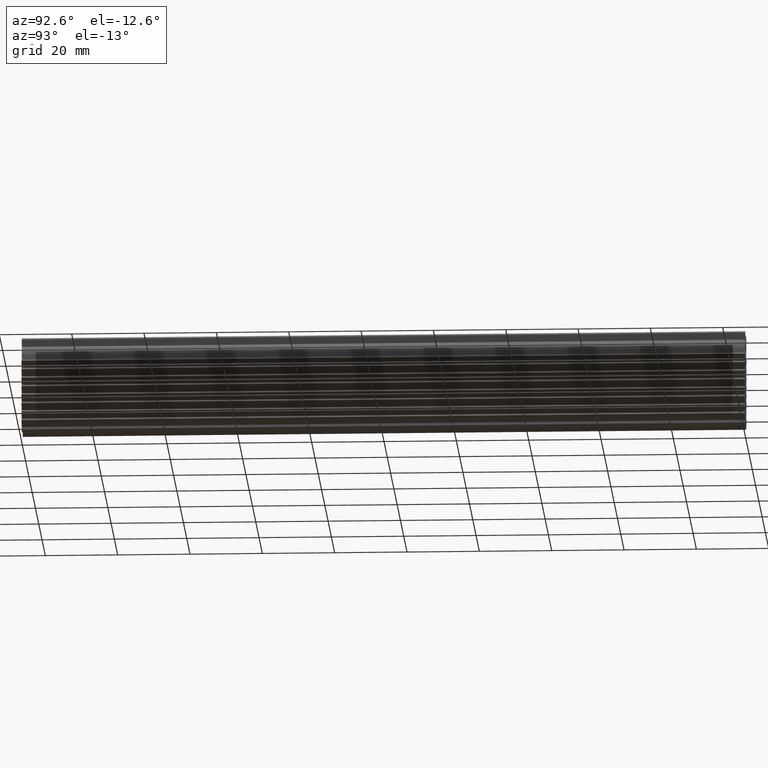
[diagram: clean part render]
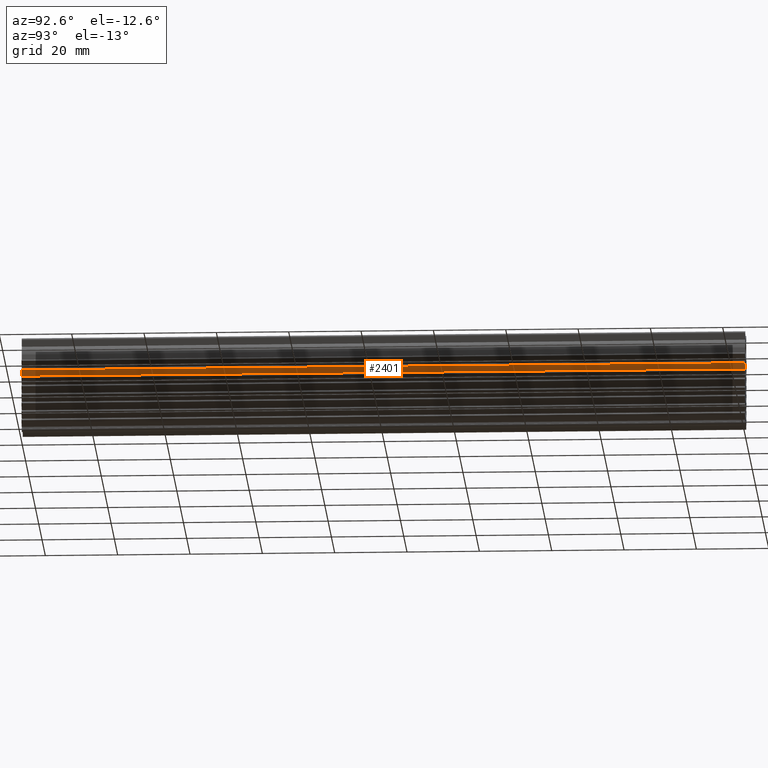
[diagram: same view with one face highlighted and labeled with its STEP entity id]
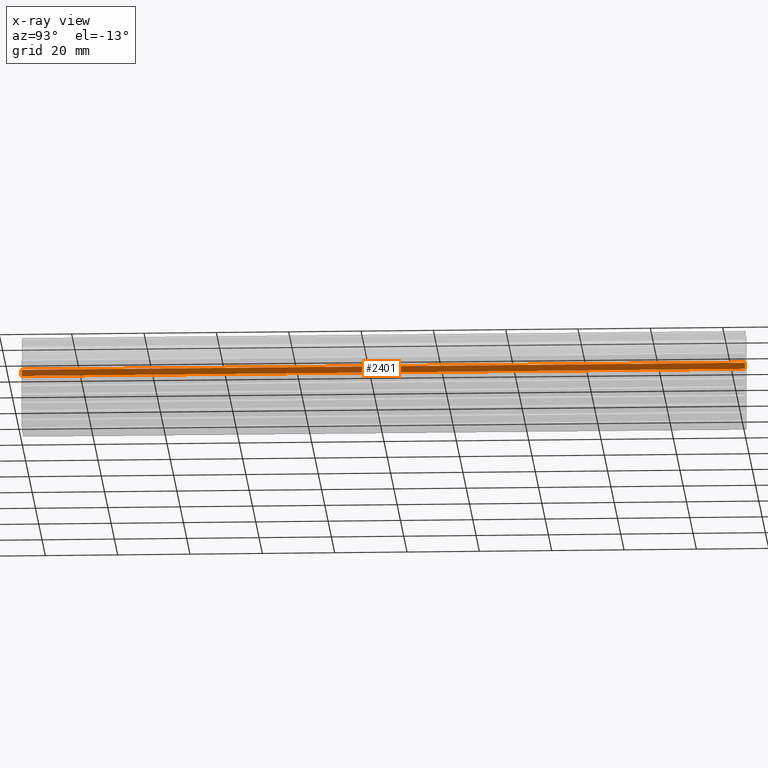
[diagram: x-ray of the same camera — body ghosted, the highlighted face saturated]
A machine part, auxiliary view. The second image highlights one B-rep face of the part: STEP entity #2401.
The next image is the same camera in x-ray: the body ghosted, the highlighted face saturated — about 0% of this face is hidden behind the body in this view.
In plain terms, the highlighted face is a freeform B-spline surface patch.
Its self-contained STEP definition (entity closure, byte-faithful):
#701=CARTESIAN_POINT('',(3.750000000000000,0.0,-9.424264068708240));
#702=VERTEX_POINT('',#701);
#708=CARTESIAN_POINT('',(5.162132034355969,0.0,-8.012132034355901));
#709=VERTEX_POINT('',#708);
#710=CARTESIAN_POINT('',(3.750000000000000,0.0,-9.424264068708240));
#711=CARTESIAN_POINT('',(5.162132034355969,0.0,-8.012132034355901));
#712=QUASI_UNIFORM_CURVE('',1,(#710,#711),.UNSPECIFIED.,.F.,.U.);
#713=EDGE_CURVE('',#702,#709,#712,.T.);
#1079=CARTESIAN_POINT('',(5.162132034355969,200.0,-8.012132034355901));
#1080=VERTEX_POINT('',#1079);
#1096=CARTESIAN_POINT('',(3.750000000000000,200.0,-9.424264068708240));
#1097=VERTEX_POINT('',#1096);
#1098=CARTESIAN_POINT('',(3.750000000000000,200.0,-9.424264068708240));
#1099=CARTESIAN_POINT('',(5.162132034355969,200.0,-8.012132034355901));
#1100=QUASI_UNIFORM_CURVE('',1,(#1098,#1099),.UNSPECIFIED.,.F.,.U.);
#1101=EDGE_CURVE('',#1097,#1080,#1100,.T.);
#2376=CARTESIAN_POINT('',(5.162132034355969,200.0,-8.012132034355901));
#2377=CARTESIAN_POINT('',(5.162132034355969,0.0,-8.012132034355901));
#2378=QUASI_UNIFORM_CURVE('',1,(#2376,#2377),.UNSPECIFIED.,.F.,.U.);
#2379=EDGE_CURVE('',#1080,#709,#2378,.T.);
#2386=CARTESIAN_POINT('',(5.232668326579894,-9.989999612361194,-7.941595742132152));
#2387=CARTESIAN_POINT('',(3.679464061288510,-9.989999612361194,-9.494800007419544));
#2388=CARTESIAN_POINT('',(5.232668326579894,209.990004976779200,-7.941595742132152));
#2389=CARTESIAN_POINT('',(3.679464061288510,209.990004976779200,-9.494800007419544));
#2390=B_SPLINE_SURFACE_WITH_KNOTS('',1,1,((#2386,#2388),(#2387,#2389)),.UNSPECIFIED.,.F.,.F.,.U.,(2,2),(2,2),(0.0,2.196562537107992),(0.0,219.980004589140410),.UNSPECIFIED.);
#2391=ORIENTED_EDGE('',*,*,#713,.F.);
#2392=CARTESIAN_POINT('',(3.750000000000000,200.0,-9.424264068708240));
#2393=CARTESIAN_POINT('',(3.750000000000000,0.0,-9.424264068708240));
#2394=QUASI_UNIFORM_CURVE('',1,(#2392,#2393),.UNSPECIFIED.,.F.,.U.);
#2395=EDGE_CURVE('',#1097,#702,#2394,.T.);
#2396=ORIENTED_EDGE('',*,*,#2395,.F.);
#2397=ORIENTED_EDGE('',*,*,#1101,.T.);
#2398=ORIENTED_EDGE('',*,*,#2379,.T.);
#2399=EDGE_LOOP('',(#2391,#2396,#2397,#2398));
#2400=FACE_OUTER_BOUND('',#2399,.T.);
#2401=ADVANCED_FACE('',(#2400),#2390,.T.);